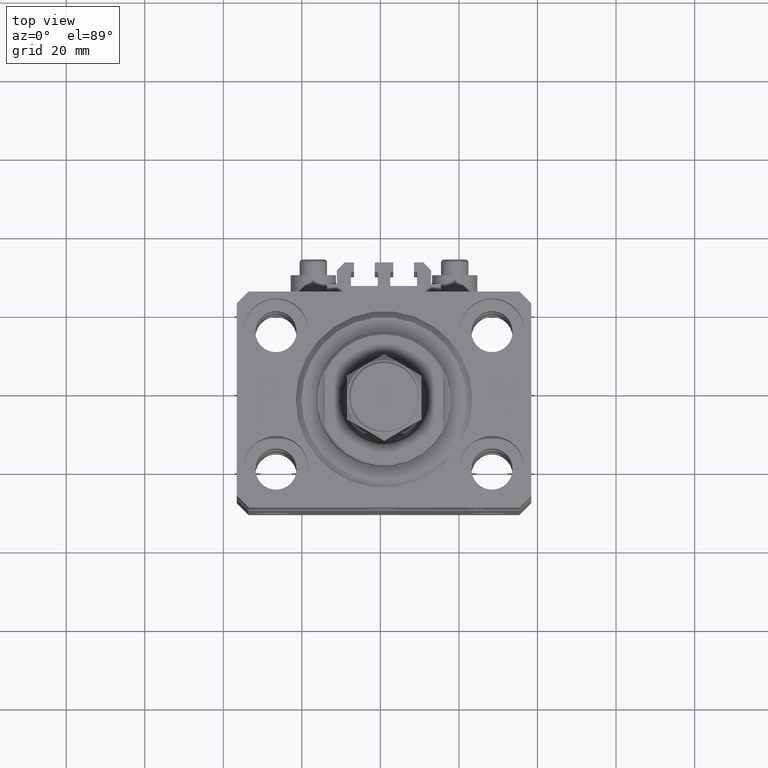
[diagram: clean part render]
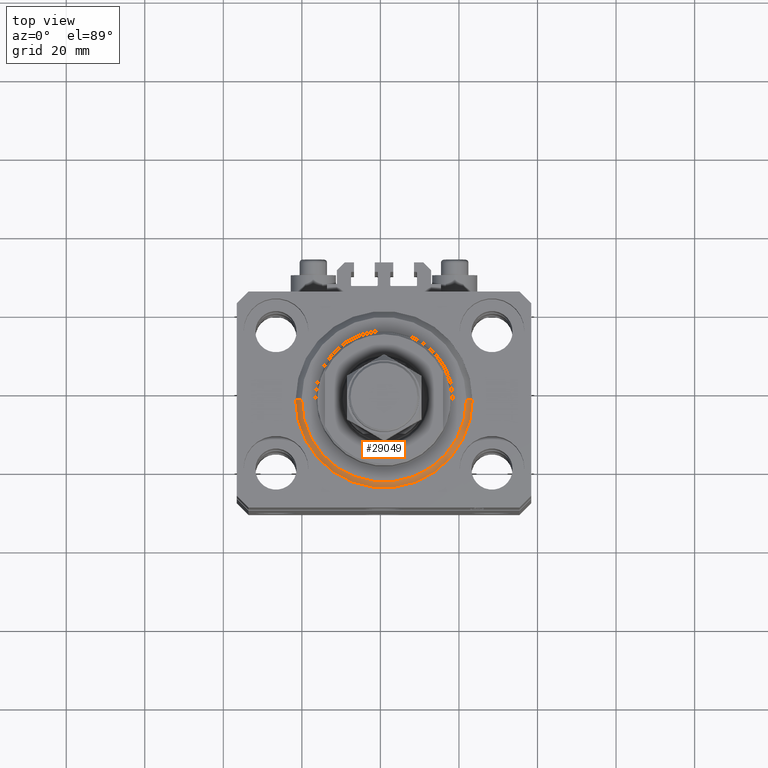
[diagram: same view with one face highlighted and labeled with its STEP entity id]
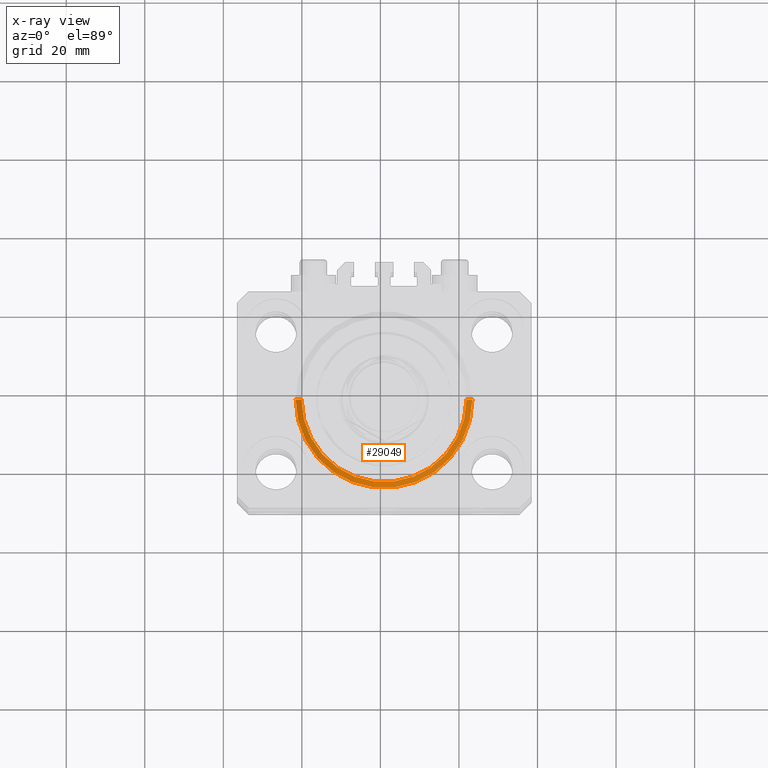
[diagram: x-ray of the same camera — body ghosted, the highlighted face saturated]
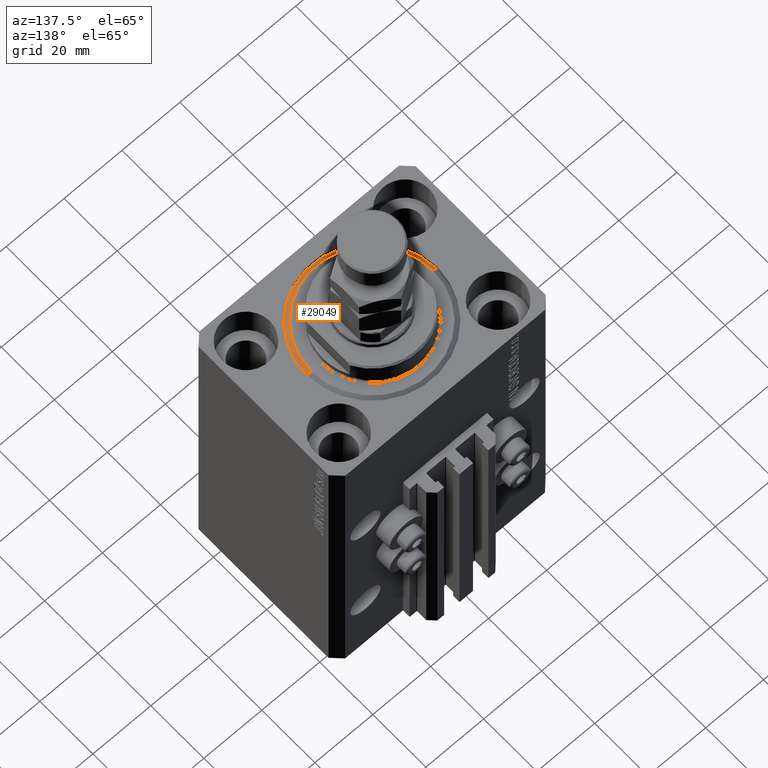
[diagram: same view with one face highlighted and labeled with its STEP entity id]
A machine part, top view. The second image highlights one B-rep face of the part: STEP entity #29049.
The next image is the same camera in x-ray: the body ghosted, the highlighted face saturated — about 0% of this face is hidden behind the body in this view.
A second angle (auxiliary view) of the same face is appended — the face is thin or edge-on in the first view.
In plain terms, the highlighted conical surface has half-angle 45 deg.
Its self-contained STEP definition (entity closure, byte-faithful):
#2181 = AXIS2_PLACEMENT_3D ( 'NONE', #43730, #46701, #40251 ) ;
#2947 = CARTESIAN_POINT ( 'NONE',  ( 20.99999999999998934, 0.000000000000000000, 0.000000000000000000 ) ) ;
#3861 = LINE ( 'NONE', #18990, #11899 ) ;
#5297 = VERTEX_POINT ( 'NONE', #2947 ) ;
#5728 = DIRECTION ( 'NONE',  ( 0.7071067811865500152, 0.000000000000000000, 0.7071067811865451302 ) ) ;
#9078 = EDGE_CURVE ( 'NONE', #5297, #40116, #47105, .T. ) ;
#10944 = CONICAL_SURFACE ( 'NONE', #31465, 22.50000000000000355, 0.7853981633974517207 ) ;
#11314 = DIRECTION ( 'NONE',  ( 1.000000000000000000, 0.000000000000000000, 0.000000000000000000 ) ) ;
#11899 = VECTOR ( 'NONE', #38075, 1000.000000000000114 ) ;
#12767 = ORIENTED_EDGE ( 'NONE', *, *, #47459, .F. ) ;
#13263 = CIRCLE ( 'NONE', #2181, 20.99999999999998934 ) ;
#16312 = FACE_OUTER_BOUND ( 'NONE', #35333, .T. ) ;
#16509 = ORIENTED_EDGE ( 'NONE', *, *, #19150, .F. ) ;
#17745 = CARTESIAN_POINT ( 'NONE',  ( 22.50000000000000355, 2.755455298081545172E-15, 1.500000000000001332 ) ) ;
#18975 = CARTESIAN_POINT ( 'NONE',  ( 0.000000000000000000, 0.000000000000000000, 1.500000000000001332 ) ) ;
#18990 = CARTESIAN_POINT ( 'NONE',  ( -22.50000000000000355, 2.755455298081545172E-15, 1.500000000000001332 ) ) ;
#19150 = EDGE_CURVE ( 'NONE', #41756, #40116, #34435, .T. ) ;
#24391 = CARTESIAN_POINT ( 'NONE',  ( -20.99999999999998934, 2.663606788145492628E-15, 0.000000000000000000 ) ) ;
#25480 = EDGE_CURVE ( 'NONE', #5297, #47649, #13263, .T. ) ;
#29049 = ADVANCED_FACE ( 'NONE', ( #16312 ), #10944, .T. ) ;
#29874 = DIRECTION ( 'NONE',  ( -0.000000000000000000, -0.000000000000000000, 1.000000000000000000 ) ) ;
#31465 = AXIS2_PLACEMENT_3D ( 'NONE', #47033, #39350, #46288 ) ;
#34435 = CIRCLE ( 'NONE', #42334, 22.50000000000000355 ) ;
#35333 = EDGE_LOOP ( 'NONE', ( #12767, #41563, #38321, #16509 ) ) ;
#35693 = CARTESIAN_POINT ( 'NONE',  ( -22.50000000000000355, 0.000000000000000000, 1.500000000000001332 ) ) ;
#36385 = VECTOR ( 'NONE', #5728, 1000.000000000000114 ) ;
#38075 = DIRECTION ( 'NONE',  ( -0.7071067811865500152, 8.659560562354963673E-17, 0.7071067811865451302 ) ) ;
#38321 = ORIENTED_EDGE ( 'NONE', *, *, #9078, .T. ) ;
#39350 = DIRECTION ( 'NONE',  ( -0.000000000000000000, -0.000000000000000000, 1.000000000000000000 ) ) ;
#40116 = VERTEX_POINT ( 'NONE', #17745 ) ;
#40251 = DIRECTION ( 'NONE',  ( 1.000000000000000000, 0.000000000000000000, 0.000000000000000000 ) ) ;
#41563 = ORIENTED_EDGE ( 'NONE', *, *, #25480, .F. ) ;
#41756 = VERTEX_POINT ( 'NONE', #35693 ) ;
#42334 = AXIS2_PLACEMENT_3D ( 'NONE', #18975, #29874, #11314 ) ;
#43143 = CARTESIAN_POINT ( 'NONE',  ( 22.50000000000000355, 0.000000000000000000, 1.500000000000001332 ) ) ;
#43730 = CARTESIAN_POINT ( 'NONE',  ( 0.000000000000000000, 0.000000000000000000, 0.000000000000000000 ) ) ;
#46288 = DIRECTION ( 'NONE',  ( 1.000000000000000000, 0.000000000000000000, 0.000000000000000000 ) ) ;
#46701 = DIRECTION ( 'NONE',  ( -0.000000000000000000, -0.000000000000000000, -1.000000000000000000 ) ) ;
#47033 = CARTESIAN_POINT ( 'NONE',  ( 0.000000000000000000, 0.000000000000000000, 1.500000000000001332 ) ) ;
#47105 = LINE ( 'NONE', #43143, #36385 ) ;
#47459 = EDGE_CURVE ( 'NONE', #47649, #41756, #3861, .T. ) ;
#47649 = VERTEX_POINT ( 'NONE', #24391 ) ;